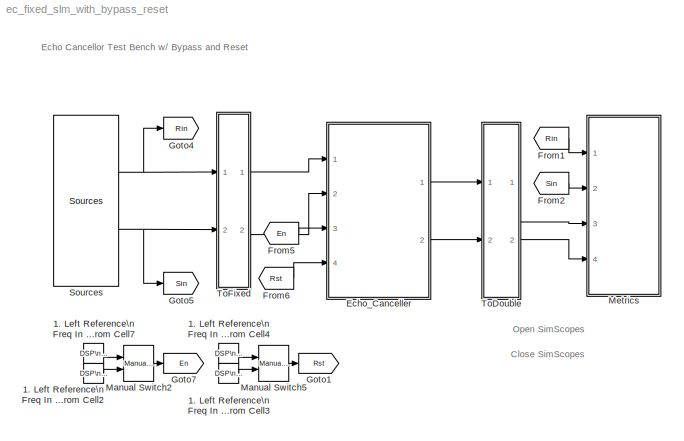
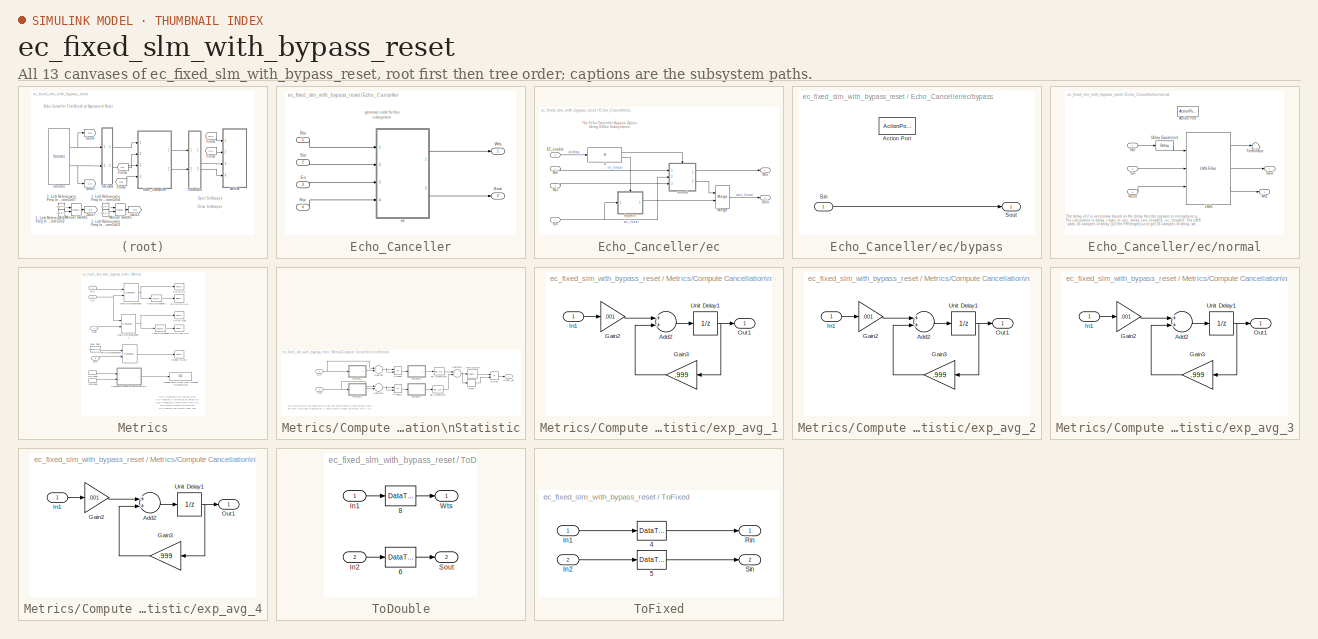
[diagram: thumbnail index - all 13 canvases of the model, root first then tree order]
MODEL ec_fixed_slm_with_bypass_reset
KIND model
CONFIG PreLoadFcn = ec_fixed_setup;
CONFIG StartFcn = tic;
CONFIG StopFcn = toc;
BLOCK [Reference] 1. Left Reference\nFreq In Hz\nFrom Cell2  REF=dspsrcs4/DSP\nConstant
  FramebasedOutput = -inf
  FunctionWithSeparateData = off
  InterpretAs1D = -inf
  Ports = [0, 1]
  RTWMemSecDataConstants = Inherit from model
  RTWMemSecDataInternal = Inherit from model
  RTWMemSecDataParameters = Inherit from model
  RTWMemSecFuncExecute = Inherit from model
  RTWMemSecFuncInitTerm = Inherit from model
  SID = 1
  SampleMode = Discrete
  ShowPortLabels = FromPortIcon
  SourceBlock = dspsrcs4/DSP\nConstant
  SourceProductBaseCode = DS
  SourceProductName = DSP System Toolbox
  SourceType = DSP Constant
  SystemSampleTime = -1
  Ts = -inf
  Value = 0
  additionalParams = on
  allowOverrides = on
  continuousOutput = Sample-based
  dataType = int16
  discreteOutput = Sample-based
  fracBitsMode = Best precision
  framePeriod = pic_frame_size/Fs
  isSigned = on
  numFracBits = 15
  sampTime = pic_frame_size/Fs
  udDataType = sfix(16)
  wordLen = 16
BLOCK [Reference] 1. Left Reference\nFreq In Hz\nFrom Cell3  REF=dspsrcs4/DSP\nConstant
  FramebasedOutput = -inf
  FunctionWithSeparateData = off
  InterpretAs1D = -inf
  Ports = [0, 1]
  RTWMemSecDataConstants = Inherit from model
  RTWMemSecDataInternal = Inherit from model
  RTWMemSecDataParameters = Inherit from model
  RTWMemSecFuncExecute = Inherit from model
  RTWMemSecFuncInitTerm = Inherit from model
  SID = 2
  SampleMode = Discrete
  ShowPortLabels = FromPortIcon
  SourceBlock = dspsrcs4/DSP\nConstant
  SourceProductBaseCode = DS
  SourceProductName = DSP System Toolbox
  SourceType = DSP Constant
  SystemSampleTime = -1
  Ts = -inf
  Value = 0
  additionalParams = on
  allowOverrides = on
  continuousOutput = Sample-based
  dataType = int16
  discreteOutput = Sample-based
  fracBitsMode = Best precision
  framePeriod = pic_frame_size/Fs
  isSigned = on
  numFracBits = 15
  sampTime = pic_frame_size/Fs
  udDataType = sfix(16)
  wordLen = 16
BLOCK [Reference] 1. Left Reference\nFreq In Hz\nFrom Cell4  REF=dspsrcs4/DSP\nConstant
  FramebasedOutput = -inf
  FunctionWithSeparateData = off
  InterpretAs1D = -inf
  Ports = [0, 1]
  RTWMemSecDataConstants = Inherit from model
  RTWMemSecDataInternal = Inherit from model
  RTWMemSecDataParameters = Inherit from model
  RTWMemSecFuncExecute = Inherit from model
  RTWMemSecFuncInitTerm = Inherit from model
  SID = 3
  SampleMode = Discrete
  ShowPortLabels = FromPortIcon
  SourceBlock = dspsrcs4/DSP\nConstant
  SourceProductBaseCode = DS
  SourceProductName = DSP System Toolbox
  SourceType = DSP Constant
  SystemSampleTime = -1
  Ts = -inf
  Value = 1
  additionalParams = on
  allowOverrides = on
  continuousOutput = Sample-based
  dataType = int16
  discreteOutput = Sample-based
  fracBitsMode = Best precision
  framePeriod = pic_frame_size/Fs
  isSigned = on
  numFracBits = 15
  sampTime = pic_frame_size/Fs
  udDataType = sfix(16)
  wordLen = 16
BLOCK [Reference] 1. Left Reference\nFreq In Hz\nFrom Cell7  REF=dspsrcs4/DSP\nConstant
  FramebasedOutput = -inf
  FunctionWithSeparateData = off
  InterpretAs1D = -inf
  Ports = [0, 1]
  RTWMemSecDataConstants = Inherit from model
  RTWMemSecDataInternal = Inherit from model
  RTWMemSecDataParameters = Inherit from model
  RTWMemSecFuncExecute = Inherit from model
  RTWMemSecFuncInitTerm = Inherit from model
  SID = 4
  SampleMode = Discrete
  ShowPortLabels = FromPortIcon
  SourceBlock = dspsrcs4/DSP\nConstant
  SourceProductBaseCode = DS
  SourceProductName = DSP System Toolbox
  SourceType = DSP Constant
  SystemSampleTime = -1
  Ts = -inf
  Value = 1
  additionalParams = on
  allowOverrides = on
  continuousOutput = Sample-based
  dataType = int16
  discreteOutput = Sample-based
  fracBitsMode = Best precision
  framePeriod = pic_frame_size/Fs
  isSigned = on
  numFracBits = 15
  sampTime = pic_frame_size/Fs
  udDataType = sfix(16)
  wordLen = 16
BLOCK [SubSystem] Echo_Canceller
  Ports = [4, 2]
  RequestExecContextInheritance = off
  SID = 5
BLOCK [Inport] Echo_Canceller/En
  IconDisplay = Port number
  OutDataTypeStr = int16
  Port = 3
  SID = 8
BLOCK [Inport] Echo_Canceller/Rin
  IconDisplay = Port number
  SID = 6
BLOCK [Inport] Echo_Canceller/Rst
  IconDisplay = Port number
  OutDataTypeStr = int16
  Port = 4
  SID = 9
BLOCK [Inport] Echo_Canceller/Sin 
  IconDisplay = Port number
  Port = 2
  SID = 7
BLOCK [Outport] Echo_Canceller/Sout
  IconDisplay = Port number
  Port = 2
  SID = 36
BLOCK [Outport] Echo_Canceller/Wts
  IconDisplay = Port number
  SID = 35
BLOCK [SubSystem] Echo_Canceller/ec
  Ports = [4, 2]
  RequestExecContextInheritance = off
  SID = 10
BLOCK [Inport] Echo_Canceller/ec/EC_enable
  IconDisplay = Port number
  Port = 3
  SID = 13
BLOCK [If] Echo_Canceller/ec/If
  IfExpression = u1 == 1
  Ports = [1, 2]
  SID = 15
BLOCK [Merge] Echo_Canceller/ec/Merge
  Ports = [2, 1]
  SID = 16
BLOCK [Inport] Echo_Canceller/ec/Rin
  IconDisplay = Port number
  SID = 11
BLOCK [Inport] Echo_Canceller/ec/Rst
  IconDisplay = Port number
  Port = 4
  SID = 14
BLOCK [Inport] Echo_Canceller/ec/Sin
  IconDisplay = Port number
  Port = 2
  SID = 12
BLOCK [Outport] Echo_Canceller/ec/Sout
  IconDisplay = Port number
  Port = 2
  SID = 33
BLOCK [Outport] Echo_Canceller/ec/Wts
  IconDisplay = Port number
  SID = 32
BLOCK [SubSystem] Echo_Canceller/ec/bypass
  Ports = [1, 1, 0, 0, 0, 0, 0, 1]
  RequestExecContextInheritance = off
  SID = 17
  TreatAsAtomicUnit = on
BLOCK [ActionPort] Echo_Canceller/ec/bypass/Action Port
  ActionPortLabel = else { }
  SID = 19
BLOCK [Inport] Echo_Canceller/ec/bypass/Sin 
  IconDisplay = Port number
  SID = 18
BLOCK [Outport] Echo_Canceller/ec/bypass/Sout
  IconDisplay = Port number
  SID = 20
BLOCK [SubSystem] Echo_Canceller/ec/normal
  Ports = [3, 2, 0, 0, 0, 0, 0, 1]
  RequestExecContextInheritance = off
  SID = 21
  TreatAsAtomicUnit = on
BLOCK [ActionPort] Echo_Canceller/ec/normal/Action Port
  ActionPortLabel = if { }
  SID = 25
BLOCK [Reference] Echo_Canceller/ec/normal/Delay Equalizer1  REF=dspsigops/Delay
  Ports = [1, 1]
  SID = 26
  SourceBlock = dspsigops/Delay
  SourceProductBaseCode = DS
  SourceProductName = DSP System Toolbox
  SourceType = Delay
  delay = spkr_to_mic_delay +sm_length/2 - ec_length/2
  dif_ic_for_ch = off
  dif_ic_for_dly = off
  dly_unit = Samples
  ic = 0
  ic_detail = off
  reset_popup = None
BLOCK [Reference] Echo_Canceller/ec/normal/LMS  REF=dspadpt3/LMS Filter
  Adapt = off
  Algo = LMS
  L = ec_length
  LockScale = off
  Ports = [3, 3]
  SID = 27
  ShowPortLabels = off
  SourceBlock = dspadpt3/LMS Filter
  SourceProductBaseCode = DS
  SourceProductName = DSP System Toolbox
  SourceType = LMS Filter
  accum2FracLength = LMS_Accum_FracLen
  accum2Mode = User-defined
  accumFracLength = 20
  accumMode = Binary point scaling
  accumWordLength = LMS_Accum_WordLen
  addnparflag = off
  firstCoeffFracLength = 15
  firstCoeffMode = Same word length as first input
  firstCoeffWordLength = 16
  ic = 0
  leakage = 1
  memoryFracLength = LMS_Wts_FracLen
  memoryMode = Binary point scaling
  memoryWordLength = LMS_Wts_WordLen
  mu = 300/32768
  overflowMode = off
  prodOutput2FracLength = LMS_Prod_FracLen
  prodOutput2Mode = User-defined
  prodOutput3FracLength = LMS_Prod_FracLen
  prodOutput3Mode = User-defined
  prodOutput4FracLength = LMS_Prod_FracLen
  prodOutput4Mode = User-defined
  prodOutputFracLength = 20
  prodOutputMode = Binary point scaling
  prodOutputWordLength = LMS_Prod_WordLen
  quotientFracLength = 20
  quotientMode = User-defined
  resetflag = Non-zero sample
  roundingMode = Nearest
  secondCoeffFracLength = 14
  secondCoeffMode = User-defined
  secondCoeffWordLength = 2
  stepflag = Dialog
  weights = on
BLOCK [Inport] Echo_Canceller/ec/normal/Reset
  IconDisplay = Port number
  Port = 3
  SID = 24
BLOCK [Inport] Echo_Canceller/ec/normal/Rin
  IconDisplay = Port number
  SID = 22
BLOCK [Inport] Echo_Canceller/ec/normal/Sin
  IconDisplay = Port number
  Port = 2
  SID = 23
BLOCK [Outport] Echo_Canceller/ec/normal/Sout
  IconDisplay = Port number
  Port = 2
  SID = 30
BLOCK [Terminator] Echo_Canceller/ec/normal/Terminator
  SID = 28
BLOCK [Outport] Echo_Canceller/ec/normal/Wts
  IconDisplay = Port number
  SID = 29
BLOCK [From] From1
  CloseFcn = tagdialog Close
  GotoTag = Rin
  SID = 38
  TagVisibility = global
BLOCK [From] From2
  CloseFcn = tagdialog Close
  GotoTag = Sin
  SID = 39
  TagVisibility = global
BLOCK [From] From5
  CloseFcn = tagdialog Close
  GotoTag = En
  SID = 40
BLOCK [From] From6
  CloseFcn = tagdialog Close
  GotoTag = Rst
  SID = 41
BLOCK [Goto] Goto1
  GotoTag = Rst
  SID = 42
BLOCK [Goto] Goto4
  GotoTag = Rin
  SID = 43
  TagVisibility = global
BLOCK [Goto] Goto5
  GotoTag = Sin
  SID = 44
  TagVisibility = global
BLOCK [Goto] Goto7
  GotoTag = En
  SID = 45
BLOCK [Reference] Manual Switch2  REF=simulink/Signal\nRouting/Manual Switch
  FunctionWithSeparateData = off
  Ports = [2, 1]
  RTWMemSecDataConstants = Inherit from model
  RTWMemSecDataInternal = Inherit from model
  RTWMemSecDataParameters = Inherit from model
  RTWMemSecFuncExecute = Inherit from model
  RTWMemSecFuncInitTerm = Inherit from model
  SID = 46
  ShowPortLabels = FromPortIcon
  SourceBlock = simulink/Signal\nRouting/Manual Switch
  SourceProductBaseCode = SL
  SourceProductName = Simulink
  SourceType = Manual Switch
  SystemSampleTime = -1
  action = 0
  sw = 1
  varsize = off
BLOCK [Reference] Manual Switch5  REF=simulink/Signal\nRouting/Manual Switch
  FunctionWithSeparateData = off
  Ports = [2, 1]
  RTWMemSecDataConstants = Inherit from model
  RTWMemSecDataInternal = Inherit from model
  RTWMemSecDataParameters = Inherit from model
  RTWMemSecFuncExecute = Inherit from model
  RTWMemSecFuncInitTerm = Inherit from model
  SID = 47
  ShowPortLabels = FromPortIcon
  SourceBlock = simulink/Signal\nRouting/Manual Switch
  SourceProductBaseCode = SL
  SourceProductName = Simulink
  SourceType = Manual Switch
  SystemSampleTime = -1
  action = 0
  sw = 0
  varsize = off
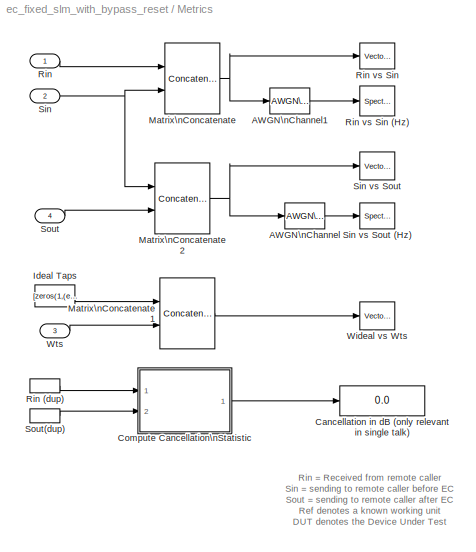
BLOCK [SubSystem] Metrics
  Ports = [4]
  RequestExecContextInheritance = off
  SID = 48
  TreatAsAtomicUnit = on
BLOCK [Reference] Metrics/AWGN\nChannel  REF=commchan3/AWGN\nChannel
  EbNodB = 100
  EsNodB = 10
  FunctionWithSeparateData = off
  Ports = [1, 1]
  Ps = 1
  RTWMemSecDataConstants = Inherit from model
  RTWMemSecDataInternal = Inherit from model
  RTWMemSecDataParameters = Inherit from model
  RTWMemSecFuncExecute = Inherit from model
  RTWMemSecFuncInitTerm = Inherit from model
  SID = 53
  SNRdB = 10
  ShowPortLabels = FromPortIcon
  SourceBlock = commchan3/AWGN\nChannel
  SourceProductBaseCode = CM
  SourceProductName = Communications Toolbox
  SourceType = AWGN Channel
  SystemSampleTime = -1
  Tsym = 1/Fs
  bitsPerSym = 1
  noiseMode = Signal to noise ratio  (Eb/No)
  seed = 67
  variance = 1
BLOCK [Reference] Metrics/AWGN\nChannel1  REF=commchan3/AWGN\nChannel
  EbNodB = 100
  EsNodB = 10
  FunctionWithSeparateData = off
  Ports = [1, 1]
  Ps = 1
  RTWMemSecDataConstants = Inherit from model
  RTWMemSecDataInternal = Inherit from model
  RTWMemSecDataParameters = Inherit from model
  RTWMemSecFuncExecute = Inherit from model
  RTWMemSecFuncInitTerm = Inherit from model
  SID = 54
  SNRdB = 10
  ShowPortLabels = FromPortIcon
  SourceBlock = commchan3/AWGN\nChannel
  SourceProductBaseCode = CM
  SourceProductName = Communications Toolbox
  SourceType = AWGN Channel
  SystemSampleTime = -1
  Tsym = 1/Fs
  bitsPerSym = 1
  noiseMode = Signal to noise ratio  (Eb/No)
  seed = 67
  variance = 1
BLOCK [Display] Metrics/Cancellation in dB (only relevant in single talk)
  Decimation = 1
  Ports = [1]
  SID = 55
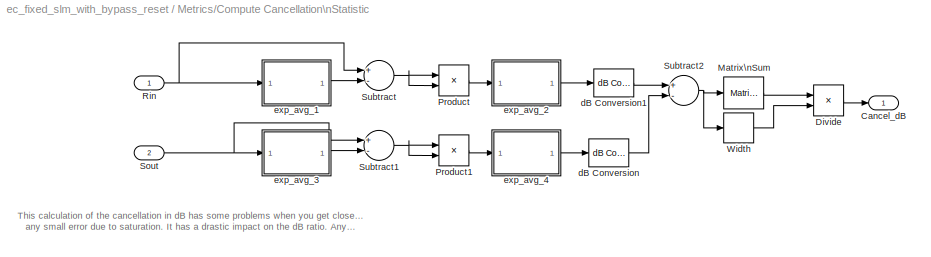
BLOCK [SubSystem] Metrics/Compute Cancellation\nStatistic
  Ports = [2, 1]
  RequestExecContextInheritance = off
  SID = 56
BLOCK [Outport] Metrics/Compute Cancellation\nStatistic/Cancel_dB
  IconDisplay = Port number
  SID = 97
BLOCK [Product] Metrics/Compute Cancellation\nStatistic/Divide
  InputSameDT = off
  Inputs = */
  OutDataTypeStr = Inherit: Inherit via internal rule
  Ports = [2, 1]
  RndMeth = Floor
  SID = 59
  SaturateOnIntegerOverflow = off
BLOCK [Reference] Metrics/Compute Cancellation\nStatistic/Matrix\nSum  REF=dspmtrx3/Matrix\nSum
  Dim = Columns
  LockScale = off
  Ports = [1, 1]
  SID = 60
  SourceBlock = dspmtrx3/Matrix\nSum
  SourceProductBaseCode = DS
  SourceProductName = DSP System Toolbox
  SourceType = Matrix Sum
  accumFracLength = 0
  accumMode = Binary point scaling
  accumWordLength = 32
  additionalParams = on
  allowOverrides = on
  outputFracLength = 0
  outputMode = Binary point scaling
  outputWordLength = 32
  overflowMode = off
  roundingMode = Floor
BLOCK [Product] Metrics/Compute Cancellation\nStatistic/Product
  InputSameDT = off
  OutDataTypeStr = Inherit: Inherit via internal rule
  Ports = [2, 1]
  SID = 61
  SaturateOnIntegerOverflow = off
BLOCK [Product] Metrics/Compute Cancellation\nStatistic/Product1
  InputSameDT = off
  OutDataTypeStr = Inherit: Inherit via internal rule
  Ports = [2, 1]
  SID = 62
  SaturateOnIntegerOverflow = off
BLOCK [Inport] Metrics/Compute Cancellation\nStatistic/Rin
  IconDisplay = Port number
  SID = 57
BLOCK [Inport] Metrics/Compute Cancellation\nStatistic/Sout
  IconDisplay = Port number
  Port = 2
  SID = 58
BLOCK [Sum] Metrics/Compute Cancellation\nStatistic/Subtract
  InputSameDT = off
  Inputs = +-
  OutDataTypeStr = Inherit: Inherit via internal rule
  Ports = [2, 1]
  SID = 63
  SaturateOnIntegerOverflow = off
BLOCK [Sum] Metrics/Compute Cancellation\nStatistic/Subtract1
  InputSameDT = off
  Inputs = +-
  OutDataTypeStr = Inherit: Inherit via internal rule
  Ports = [2, 1]
  SID = 64
  SaturateOnIntegerOverflow = off
BLOCK [Sum] Metrics/Compute Cancellation\nStatistic/Subtract2
  InputSameDT = off
  Inputs = +-
  OutDataTypeStr = Inherit: Inherit via internal rule
  Ports = [2, 1]
  SID = 65
  SaturateOnIntegerOverflow = off
BLOCK [Width] Metrics/Compute Cancellation\nStatistic/Width
  SID = 66
BLOCK [Reference] Metrics/Compute Cancellation\nStatistic/dB Conversion  REF=dspmathops/dB Conversion
  FunctionWithSeparateData = off
  Ports = [1, 1]
  R = 1
  RTWMemSecDataConstants = Inherit from model
  RTWMemSecDataInternal = Inherit from model
  RTWMemSecDataParameters = Inherit from model
  RTWMemSecFuncExecute = Inherit from model
  RTWMemSecFuncInitTerm = Inherit from model
  SID = 67
  ShowPortLabels = FromPortIcon
  SourceBlock = dspmathops/dB Conversion
  SourceProductBaseCode = DS
  SourceProductName = DSP System Toolbox
  SourceType = dB Conversion
  SystemSampleTime = -1
  dBtype = dB
  fuzz = on
  intype = Power
BLOCK [Reference] Metrics/Compute Cancellation\nStatistic/dB Conversion1  REF=dspmathops/dB Conversion
  FunctionWithSeparateData = off
  Ports = [1, 1]
  R = 1
  RTWMemSecDataConstants = Inherit from model
  RTWMemSecDataInternal = Inherit from model
  RTWMemSecDataParameters = Inherit from model
  RTWMemSecFuncExecute = Inherit from model
  RTWMemSecFuncInitTerm = Inherit from model
  SID = 68
  ShowPortLabels = FromPortIcon
  SourceBlock = dspmathops/dB Conversion
  SourceProductBaseCode = DS
  SourceProductName = DSP System Toolbox
  SourceType = dB Conversion
  SystemSampleTime = -1
  dBtype = dB
  fuzz = on
  intype = Power
BLOCK [SubSystem] Metrics/Compute Cancellation\nStatistic/exp_avg_1
  Ports = [1, 1]
  RequestExecContextInheritance = off
  SID = 69
BLOCK [Sum] Metrics/Compute Cancellation\nStatistic/exp_avg_1/Add2
  InputSameDT = off
  OutDataTypeStr = Inherit: Inherit via internal rule
  Ports = [2, 1]
  SID = 71
  SaturateOnIntegerOverflow = off
BLOCK [Gain] Metrics/Compute Cancellation\nStatistic/exp_avg_1/Gain2
  Gain = .001
  OutDataTypeStr = Inherit: Inherit via internal rule
  ParamDataTypeStr = Inherit: Inherit via internal rule
  SID = 72
  SaturateOnIntegerOverflow = off
BLOCK [Gain] Metrics/Compute Cancellation\nStatistic/exp_avg_1/Gain3
  Gain = .999
  OutDataTypeStr = Inherit: Inherit via internal rule
  ParamDataTypeStr = Inherit: Inherit via internal rule
  SID = 73
  SaturateOnIntegerOverflow = off
BLOCK [Inport] Metrics/Compute Cancellation\nStatistic/exp_avg_1/In1
  IconDisplay = Port number
  SID = 70
BLOCK [Outport] Metrics/Compute Cancellation\nStatistic/exp_avg_1/Out1
  IconDisplay = Port number
  SID = 75
BLOCK [UnitDelay] Metrics/Compute Cancellation\nStatistic/exp_avg_1/Unit Delay1
  SID = 74
  SampleTime = -1
BLOCK [SubSystem] Metrics/Compute Cancellation\nStatistic/exp_avg_2
  Ports = [1, 1]
  RequestExecContextInheritance = off
  SID = 76
BLOCK [Sum] Metrics/Compute Cancellation\nStatistic/exp_avg_2/Add2
  InputSameDT = off
  OutDataTypeStr = Inherit: Inherit via internal rule
  Ports = [2, 1]
  SID = 78
  SaturateOnIntegerOverflow = off
BLOCK [Gain] Metrics/Compute Cancellation\nStatistic/exp_avg_2/Gain2
  Gain = .001
  OutDataTypeStr = Inherit: Inherit via internal rule
  ParamDataTypeStr = Inherit: Inherit via internal rule
  SID = 79
  SaturateOnIntegerOverflow = off
BLOCK [Gain] Metrics/Compute Cancellation\nStatistic/exp_avg_2/Gain3
  Gain = .999
  OutDataTypeStr = Inherit: Inherit via internal rule
  ParamDataTypeStr = Inherit: Inherit via internal rule
  SID = 80
  SaturateOnIntegerOverflow = off
BLOCK [Inport] Metrics/Compute Cancellation\nStatistic/exp_avg_2/In1
  IconDisplay = Port number
  SID = 77
BLOCK [Outport] Metrics/Compute Cancellation\nStatistic/exp_avg_2/Out1
  IconDisplay = Port number
  SID = 82
BLOCK [UnitDelay] Metrics/Compute Cancellation\nStatistic/exp_avg_2/Unit Delay1
  SID = 81
  SampleTime = -1
BLOCK [SubSystem] Metrics/Compute Cancellation\nStatistic/exp_avg_3
  Ports = [1, 1]
  RequestExecContextInheritance = off
  SID = 83
BLOCK [Sum] Metrics/Compute Cancellation\nStatistic/exp_avg_3/Add2
  InputSameDT = off
  OutDataTypeStr = Inherit: Inherit via internal rule
  Ports = [2, 1]
  SID = 85
  SaturateOnIntegerOverflow = off
BLOCK [Gain] Metrics/Compute Cancellation\nStatistic/exp_avg_3/Gain2
  Gain = .001
  OutDataTypeStr = Inherit: Inherit via internal rule
  ParamDataTypeStr = Inherit: Inherit via internal rule
  SID = 86
  SaturateOnIntegerOverflow = off
BLOCK [Gain] Metrics/Compute Cancellation\nStatistic/exp_avg_3/Gain3
  Gain = .999
  OutDataTypeStr = Inherit: Inherit via internal rule
  ParamDataTypeStr = Inherit: Inherit via internal rule
  SID = 87
  SaturateOnIntegerOverflow = off
BLOCK [Inport] Metrics/Compute Cancellation\nStatistic/exp_avg_3/In1
  IconDisplay = Port number
  SID = 84
BLOCK [Outport] Metrics/Compute Cancellation\nStatistic/exp_avg_3/Out1
  IconDisplay = Port number
  SID = 89
BLOCK [UnitDelay] Metrics/Compute Cancellation\nStatistic/exp_avg_3/Unit Delay1
  SID = 88
  SampleTime = -1
BLOCK [SubSystem] Metrics/Compute Cancellation\nStatistic/exp_avg_4
  Ports = [1, 1]
  RequestExecContextInheritance = off
  SID = 90
BLOCK [Sum] Metrics/Compute Cancellation\nStatistic/exp_avg_4/Add2
  InputSameDT = off
  OutDataTypeStr = Inherit: Inherit via internal rule
  Ports = [2, 1]
  SID = 92
  SaturateOnIntegerOverflow = off
BLOCK [Gain] Metrics/Compute Cancellation\nStatistic/exp_avg_4/Gain2
  Gain = .001
  OutDataTypeStr = Inherit: Inherit via internal rule
  ParamDataTypeStr = Inherit: Inherit via internal rule
  SID = 93
  SaturateOnIntegerOverflow = off
BLOCK [Gain] Metrics/Compute Cancellation\nStatistic/exp_avg_4/Gain3
  Gain = .999
  OutDataTypeStr = Inherit: Inherit via internal rule
  ParamDataTypeStr = Inherit: Inherit via internal rule
  SID = 94
  SaturateOnIntegerOverflow = off
BLOCK [Inport] Metrics/Compute Cancellation\nStatistic/exp_avg_4/In1
  IconDisplay = Port number
  SID = 91
BLOCK [Outport] Metrics/Compute Cancellation\nStatistic/exp_avg_4/Out1
  IconDisplay = Port number
  SID = 96
BLOCK [UnitDelay] Metrics/Compute Cancellation\nStatistic/exp_avg_4/Unit Delay1
  SID = 95
  SampleTime = -1
BLOCK [Constant] Metrics/Ideal Taps
  FramePeriod = pic_frame_size/Fs
  SID = 99
  SampleTime = pic_frame_size/Fs
  SamplingMode = Frame based
  Value = [zeros(1,(ec_length-sm_length)/2) spkr_to_mic_filter zeros(1,(ec_length-sm_length)/2)]
BLOCK [Concatenate] Metrics/Matrix\nConcatenate
  ConcatenateDimension = 2
  Mode = Multidimensional array
  Ports = [2, 1]
  SID = 100
BLOCK [Concatenate] Metrics/Matrix\nConcatenate1
  ConcatenateDimension = 2
  Mode = Multidimensional array
  Ports = [2, 1]
  SID = 101
BLOCK [Concatenate] Metrics/Matrix\nConcatenate2
  ConcatenateDimension = 2
  Mode = Multidimensional array
  Ports = [2, 1]
  SID = 102
BLOCK [Inport] Metrics/Rin
  IconDisplay = Port number
  SID = 49
BLOCK [InportShadow] Metrics/Rin (dup)
  IconDisplay = Port number
  SID = 103
BLOCK [Reference] Metrics/Rin vs Sin  REF=dspsnks4/Vector\nScope
  AxisGrid = on
  AxisLegend = off
  AxisProperties = off
  AxisZoom = off
  DisplayProperties = off
  Domain = Time
  FigPos = [21 752 277 182]
  FrameNumber = on
  HorizSpan = 1
  InheritXIncr = on
  LineColors = [1 0 0]|[0 1 0]
  LineProperties = off
  Memory = off
  OpenScopeAtSimStart = off
  OpenScopeImmediately = off
  Ports = [1]
  SID = 104
  ScopeProperties = on
  ShowPortLabels = off
  SourceBlock = dspsnks4/Vector\nScope
  SourceProductBaseCode = DS
  SourceProductName = DSP System Toolbox
  SourceType = Vector Scope
  XIncr = 1
  XLabel = Time
  XLimit = Auto
  XMax = 1
  XMin = 0
  XRange = [0...Fs/2]
  XStart = 0
  XUnits = Hertz
  YLabel = Amplitude
  YMax = 1
  YMin = -1
  YUnits = dB
BLOCK [Reference] Metrics/Rin vs Sin (Hz)  REF=dspsnks4/Spectrum\nScope
  AxisGrid = on
  AxisLegend = off
  AxisProperties = off
  AxisZoom = off
  BufferSize = 512
  DisplayProperties = off
  Domain = Frequency
  FFTlength = 128
  FigPos = [22 519 280 178]
  FrameNumber = on
  FunctionWithSeparateData = off
  HorizSpan = 1
  InheritXIncr = on
  LineColors = [1 0 0]|[0 1 0]
  LineProperties = off
  Memory = off
  OpenScopeAtSimStart = off
  OpenScopeImmediately = off
  Overlap = 64
  Ports = [1]
  RTWMemSecDataConstants = Inherit from model
  RTWMemSecDataInternal = Inherit from model
  RTWMemSecDataParameters = Inherit from model
  RTWMemSecFuncExecute = Inherit from model
  RTWMemSecFuncInitTerm = Inherit from model
  RsSpecScope = 50
  SID = 105
  ScopeProperties = on
  ShowPortLabels = none
  SourceBlock = dspsnks4/Spectrum\nScope
  SourceProductBaseCode = DS
  SourceProductName = DSP System Toolbox
  SourceType = Spectrum Scope
  SystemSampleTime = -1
  UseBuffer = on
  XIncr = 1.0
  XLabel = Samples
  XLimit = Auto
  XMax = 1
  XMin = 0
  XRange = [0...Fs/2]
  XUnits = Hertz
  YLabel = Magnitude-squared, dB
  YMax = 22.6100164436924
  YMin = -87.2863320440191
  YUnits = dB
  betaSpecScope = 5
  inpFftLenInherit = off
  numAvg = 2
  winsampSpecScope = Periodic
  wintypeSpecScope = Hann
BLOCK [Inport] Metrics/Sin
  IconDisplay = Port number
  Port = 2
  SID = 50
BLOCK [Reference] Metrics/Sin vs Sout  REF=dspsnks4/Vector\nScope
  AxisGrid = on
  AxisLegend = off
  AxisProperties = off
  AxisZoom = off
  DisplayProperties = off
  Domain = Time
  FigPos = [309 518 291 181]
  FrameNumber = on
  HorizSpan = 1
  InheritXIncr = on
  LineColors = [1 0 0]|[0 1 0]
  LineProperties = off
  Memory = off
  OpenScopeAtSimStart = off
  OpenScopeImmediately = off
  Ports = [1]
  SID = 106
  ScopeProperties = on
  ShowPortLabels = off
  SourceBlock = dspsnks4/Vector\nScope
  SourceProductBaseCode = DS
  SourceProductName = DSP System Toolbox
  SourceType = Vector Scope
  XIncr = 1
  XLabel = Time
  XLimit = Auto
  XMax = 1
  XMin = 0
  XRange = [0...Fs/2]
  XStart = 0
  XUnits = Hertz
  YLabel = Amplitude
  YMax = 1.10983865900285
  YMin = -1.10854137455551
  YUnits = dB
BLOCK [Reference] Metrics/Sin vs Sout (Hz)  REF=dspsnks4/Spectrum\nScope
  AxisGrid = on
  AxisLegend = off
  AxisProperties = off
  AxisZoom = off
  BufferSize = 512
  DisplayProperties = off
  Domain = Frequency
  FFTlength = 128
  FigPos = [313 280 293 181]
  FrameNumber = on
  FunctionWithSeparateData = off
  HorizSpan = 1
  InheritXIncr = on
  LineColors = [1 0 0]|[0 1 0]
  LineProperties = off
  Memory = off
  OpenScopeAtSimStart = off
  OpenScopeImmediately = off
  Overlap = 64
  Ports = [1]
  RTWMemSecDataConstants = Inherit from model
  RTWMemSecDataInternal = Inherit from model
  RTWMemSecDataParameters = Inherit from model
  RTWMemSecFuncExecute = Inherit from model
  RTWMemSecFuncInitTerm = Inherit from model
  RsSpecScope = 50
  SID = 107
  ScopeProperties = on
  ShowPortLabels = none
  SourceBlock = dspsnks4/Spectrum\nScope
  SourceProductBaseCode = DS
  SourceProductName = DSP System Toolbox
  SourceType = Spectrum Scope
  SystemSampleTime = -1
  UseBuffer = on
  XIncr = 1.0
  XLabel = Samples
  XLimit = Auto
  XMax = 1
  XMin = 0
  XRange = [0...Fs/2]
  XUnits = Hertz
  YLabel = Magnitude-squared, dB
  YMax = 21.0948472865104
  YMin = -128.562839071617
  YUnits = dB
  betaSpecScope = 5
  inpFftLenInherit = off
  numAvg = 2
  winsampSpecScope = Periodic
  wintypeSpecScope = Hann
BLOCK [Inport] Metrics/Sout
  IconDisplay = Port number
  Port = 4
  SID = 52
BLOCK [InportShadow] Metrics/Sout(dup)
  IconDisplay = Port number
  Port = 4
  SID = 108
BLOCK [Reference] Metrics/Wideal vs Wts  REF=dspsnks4/Vector\nScope
  AxisGrid = on
  AxisLegend = off
  AxisProperties = off
  AxisZoom = off
  DisplayProperties = off
  Domain = Time
  FigPos = [16 440 466 179]
  FrameNumber = on
  HorizSpan = 1
  InheritXIncr = on
  LineColors = [1 0 0]|[0 1 0]
  LineProperties = off
  Memory = off
  OpenScopeAtSimStart = on
  OpenScopeImmediately = off
  Ports = [1]
  SID = 109
  ScopeProperties = on
  ShowPortLabels = off
  SourceBlock = dspsnks4/Vector\nScope
  SourceProductBaseCode = DS
  SourceProductName = DSP System Toolbox
  SourceType = Vector Scope
  XIncr = 1
  XLabel = Time
  XLimit = Auto
  XMax = 1
  XMin = 0
  XRange = [0...Fs/2]
  XStart = 0
  XUnits = Hertz
  YLabel = Amplitude
  YMax = 0.388477789695183
  YMin = -0.387806694375187
  YUnits = dB
BLOCK [Inport] Metrics/Wts
  IconDisplay = Port number
  Port = 3
  SID = 51
BLOCK [Reference] Sources  REF=ec_lib/Sources
  FunctionWithSeparateData = off
  Ports = [0, 2]
  RTWMemSecDataConstants = Inherit from model
  RTWMemSecDataInternal = Inherit from model
  RTWMemSecDataParameters = Inherit from model
  RTWMemSecFuncExecute = Inherit from model
  RTWMemSecFuncInitTerm = Inherit from model
  SID = 111
  ShowPortLabels = FromPortIcon
  SourceBlock = ec_lib/Sources
  SourceType = SubSystem
  SystemSampleTime = -1
BLOCK [SubSystem] ToDouble
  Ports = [2, 2]
  RequestExecContextInheritance = off
  SID = 112
BLOCK [DataTypeConversion] ToDouble/ 6
  OutDataTypeStr = double
  RndMeth = Floor
  SID = 115
  SaturateOnIntegerOverflow = off
BLOCK [DataTypeConversion] ToDouble/ 8
  OutDataTypeStr = double
  RndMeth = Floor
  SID = 116
  SaturateOnIntegerOverflow = off
BLOCK [Inport] ToDouble/In1
  IconDisplay = Port number
  SID = 113
BLOCK [Inport] ToDouble/In2
  IconDisplay = Port number
  Port = 2
  SID = 114
BLOCK [Outport] ToDouble/Sout
  IconDisplay = Port number
  Port = 2
  SID = 118
BLOCK [Outport] ToDouble/Wts
  IconDisplay = Port number
  SID = 117
BLOCK [SubSystem] ToFixed
  Ports = [2, 2]
  RequestExecContextInheritance = off
  SID = 119
BLOCK [DataTypeConversion] ToFixed/ 4
  RndMeth = Floor
  SID = 122
  SaturateOnIntegerOverflow = off
BLOCK [DataTypeConversion] ToFixed/ 5
  RndMeth = Floor
  SID = 123
  SaturateOnIntegerOverflow = off
BLOCK [Inport] ToFixed/ In2
  IconDisplay = Port number
  Port = 2
  SID = 121
BLOCK [Inport] ToFixed/In1
  IconDisplay = Port number
  SID = 120
BLOCK [Outport] ToFixed/Rin
  IconDisplay = Port number
  SID = 124
BLOCK [Outport] ToFixed/Sin
  IconDisplay = Port number
  Port = 2
  SID = 125
ANNOTATION (root): Close SimScopes
ANNOTATION (root): Echo Cancellor Test Bench w/ Bypass and Reset
ANNOTATION (root): Open SimScopes
ANNOTATION Echo_Canceller: generate code for this\nsubsystem
ANNOTATION Echo_Canceller/ec: The Echo Canceller Bypass Option\nUsing If-Else Subsystems
ANNOTATION Echo_Canceller/ec/normal: The delay of 2 is necessary based on the delay thru the speaker to microphone pathway.\nThe calculation is delay = spkr_to_mic_delay +sm_length/2 - ec_length/2. The LMS\nadds 16 samples of delay (1/2 the FIR length) so to get 18 samples of delay, we add 2 more.
ANNOTATION Metrics: Rin = Received from remote caller\nSin = sending to remote caller before EC\nSout = sending to remote caller after EC\nRef denotes a known working unit\nDUT denotes the Device Under Test
ANNOTATION Metrics/Compute Cancellation\nStatistic: This calculation of the cancellation in dB has some problems when you get close to complete cancellation and then there is\nany small error due to saturation. It has a drastic impact on the dB ratio. Anytime you get close to zero you run into these problems.
LINE 1. Left Reference\nFreq In Hz\nFrom Cell2:1 -> Manual Switch2:2
LINE 1. Left Reference\nFreq In Hz\nFrom Cell3:1 -> Manual Switch5:2
LINE 1. Left Reference\nFreq In Hz\nFrom Cell4:1 -> Manual Switch5:1
LINE 1. Left Reference\nFreq In Hz\nFrom Cell7:1 -> Manual Switch2:1
LINE Echo_Canceller/En:1 -> Echo_Canceller/ec:3
LINE Echo_Canceller/Rin:1 -> Echo_Canceller/ec:1
LINE Echo_Canceller/Rst:1 -> Echo_Canceller/ec:4
LINE Echo_Canceller/Sin :1 -> Echo_Canceller/ec:2
LINE Echo_Canceller/ec/EC_enable:1 -> Echo_Canceller/ec/If:1
LINE Echo_Canceller/ec/If:1 -> Echo_Canceller/ec/normal:ifaction
LINE Echo_Canceller/ec/If:2 -> Echo_Canceller/ec/bypass:ifaction
LINE Echo_Canceller/ec/Merge:1 -> Echo_Canceller/ec/Sout:1
LINE Echo_Canceller/ec/Rin:1 -> Echo_Canceller/ec/normal:1
LINE Echo_Canceller/ec/Rst:1 -> Echo_Canceller/ec/normal:3
NET Echo_Canceller/ec/Sin:1 -> Echo_Canceller/ec/bypass:1, Echo_Canceller/ec/normal:2
LINE Echo_Canceller/ec/bypass/Sin :1 -> Echo_Canceller/ec/bypass/Sout:1
LINE Echo_Canceller/ec/bypass:1 -> Echo_Canceller/ec/Merge:2
LINE Echo_Canceller/ec/normal/Delay Equalizer1:1 -> Echo_Canceller/ec/normal/LMS:1
LINE Echo_Canceller/ec/normal/LMS:1 -> Echo_Canceller/ec/normal/Terminator:1
LINE Echo_Canceller/ec/normal/LMS:2 -> Echo_Canceller/ec/normal/Sout:1
LINE Echo_Canceller/ec/normal/LMS:3 -> Echo_Canceller/ec/normal/Wts:1
LINE Echo_Canceller/ec/normal/Reset:1 -> Echo_Canceller/ec/normal/LMS:3
LINE Echo_Canceller/ec/normal/Rin:1 -> Echo_Canceller/ec/normal/Delay Equalizer1:1
LINE Echo_Canceller/ec/normal/Sin:1 -> Echo_Canceller/ec/normal/LMS:2
LINE Echo_Canceller/ec/normal:1 -> Echo_Canceller/ec/Wts:1
LINE Echo_Canceller/ec/normal:2 -> Echo_Canceller/ec/Merge:1
LINE Echo_Canceller/ec:1 -> Echo_Canceller/Wts:1
LINE Echo_Canceller/ec:2 -> Echo_Canceller/Sout:1
LINE Echo_Canceller:1 -> ToDouble:1
LINE Echo_Canceller:2 -> ToDouble:2
LINE From1:1 -> Metrics:1
LINE From2:1 -> Metrics:2
LINE From5:1 -> Echo_Canceller:3
LINE From6:1 -> Echo_Canceller:4
LINE Manual Switch2:1 -> Goto7:1
LINE Manual Switch5:1 -> Goto1:1
LINE Metrics/AWGN\nChannel1:1 -> Metrics/Rin vs Sin (Hz):1
LINE Metrics/AWGN\nChannel:1 -> Metrics/Sin vs Sout (Hz):1
LINE Metrics/Compute Cancellation\nStatistic/Divide:1 -> Metrics/Compute Cancellation\nStatistic/Cancel_dB:1
LINE Metrics/Compute Cancellation\nStatistic/Matrix\nSum:1 -> Metrics/Compute Cancellation\nStatistic/Divide:1
LINE Metrics/Compute Cancellation\nStatistic/Product1:1 -> Metrics/Compute Cancellation\nStatistic/exp_avg_4:1
LINE Metrics/Compute Cancellation\nStatistic/Product:1 -> Metrics/Compute Cancellation\nStatistic/exp_avg_2:1
NET Metrics/Compute Cancellation\nStatistic/Rin:1 -> Metrics/Compute Cancellation\nStatistic/Subtract:1, Metrics/Compute Cancellation\nStatistic/exp_avg_1:1
NET Metrics/Compute Cancellation\nStatistic/Sout:1 -> Metrics/Compute Cancellation\nStatistic/Subtract1:1, Metrics/Compute Cancellation\nStatistic/exp_avg_3:1
NET Metrics/Compute Cancellation\nStatistic/Subtract1:1 -> Metrics/Compute Cancellation\nStatistic/Product1:1, Metrics/Compute Cancellation\nStatistic/Product1:2
NET Metrics/Compute Cancellation\nStatistic/Subtract2:1 -> Metrics/Compute Cancellation\nStatistic/Matrix\nSum:1, Metrics/Compute Cancellation\nStatistic/Width:1
NET Metrics/Compute Cancellation\nStatistic/Subtract:1 -> Metrics/Compute Cancellation\nStatistic/Product:1, Metrics/Compute Cancellation\nStatistic/Product:2
LINE Metrics/Compute Cancellation\nStatistic/Width:1 -> Metrics/Compute Cancellation\nStatistic/Divide:2
LINE Metrics/Compute Cancellation\nStatistic/dB Conversion1:1 -> Metrics/Compute Cancellation\nStatistic/Subtract2:1
LINE Metrics/Compute Cancellation\nStatistic/dB Conversion:1 -> Metrics/Compute Cancellation\nStatistic/Subtract2:2
LINE Metrics/Compute Cancellation\nStatistic/exp_avg_1/Add2:1 -> Metrics/Compute Cancellation\nStatistic/exp_avg_1/Unit Delay1:1
LINE Metrics/Compute Cancellation\nStatistic/exp_avg_1/Gain2:1 -> Metrics/Compute Cancellation\nStatistic/exp_avg_1/Add2:1
LINE Metrics/Compute Cancellation\nStatistic/exp_avg_1/Gain3:1 -> Metrics/Compute Cancellation\nStatistic/exp_avg_1/Add2:2
LINE Metrics/Compute Cancellation\nStatistic/exp_avg_1/In1:1 -> Metrics/Compute Cancellation\nStatistic/exp_avg_1/Gain2:1
NET Metrics/Compute Cancellation\nStatistic/exp_avg_1/Unit Delay1:1 -> Metrics/Compute Cancellation\nStatistic/exp_avg_1/Gain3:1, Metrics/Compute Cancellation\nStatistic/exp_avg_1/Out1:1
LINE Metrics/Compute Cancellation\nStatistic/exp_avg_1:1 -> Metrics/Compute Cancellation\nStatistic/Subtract:2
LINE Metrics/Compute Cancellation\nStatistic/exp_avg_2/Add2:1 -> Metrics/Compute Cancellation\nStatistic/exp_avg_2/Unit Delay1:1
LINE Metrics/Compute Cancellation\nStatistic/exp_avg_2/Gain2:1 -> Metrics/Compute Cancellation\nStatistic/exp_avg_2/Add2:1
LINE Metrics/Compute Cancellation\nStatistic/exp_avg_2/Gain3:1 -> Metrics/Compute Cancellation\nStatistic/exp_avg_2/Add2:2
LINE Metrics/Compute Cancellation\nStatistic/exp_avg_2/In1:1 -> Metrics/Compute Cancellation\nStatistic/exp_avg_2/Gain2:1
NET Metrics/Compute Cancellation\nStatistic/exp_avg_2/Unit Delay1:1 -> Metrics/Compute Cancellation\nStatistic/exp_avg_2/Gain3:1, Metrics/Compute Cancellation\nStatistic/exp_avg_2/Out1:1
LINE Metrics/Compute Cancellation\nStatistic/exp_avg_2:1 -> Metrics/Compute Cancellation\nStatistic/dB Conversion1:1
LINE Metrics/Compute Cancellation\nStatistic/exp_avg_3/Add2:1 -> Metrics/Compute Cancellation\nStatistic/exp_avg_3/Unit Delay1:1
LINE Metrics/Compute Cancellation\nStatistic/exp_avg_3/Gain2:1 -> Metrics/Compute Cancellation\nStatistic/exp_avg_3/Add2:1
LINE Metrics/Compute Cancellation\nStatistic/exp_avg_3/Gain3:1 -> Metrics/Compute Cancellation\nStatistic/exp_avg_3/Add2:2
LINE Metrics/Compute Cancellation\nStatistic/exp_avg_3/In1:1 -> Metrics/Compute Cancellation\nStatistic/exp_avg_3/Gain2:1
NET Metrics/Compute Cancellation\nStatistic/exp_avg_3/Unit Delay1:1 -> Metrics/Compute Cancellation\nStatistic/exp_avg_3/Gain3:1, Metrics/Compute Cancellation\nStatistic/exp_avg_3/Out1:1
LINE Metrics/Compute Cancellation\nStatistic/exp_avg_3:1 -> Metrics/Compute Cancellation\nStatistic/Subtract1:2
LINE Metrics/Compute Cancellation\nStatistic/exp_avg_4/Add2:1 -> Metrics/Compute Cancellation\nStatistic/exp_avg_4/Unit Delay1:1
LINE Metrics/Compute Cancellation\nStatistic/exp_avg_4/Gain2:1 -> Metrics/Compute Cancellation\nStatistic/exp_avg_4/Add2:1
LINE Metrics/Compute Cancellation\nStatistic/exp_avg_4/Gain3:1 -> Metrics/Compute Cancellation\nStatistic/exp_avg_4/Add2:2
LINE Metrics/Compute Cancellation\nStatistic/exp_avg_4/In1:1 -> Metrics/Compute Cancellation\nStatistic/exp_avg_4/Gain2:1
NET Metrics/Compute Cancellation\nStatistic/exp_avg_4/Unit Delay1:1 -> Metrics/Compute Cancellation\nStatistic/exp_avg_4/Gain3:1, Metrics/Compute Cancellation\nStatistic/exp_avg_4/Out1:1
LINE Metrics/Compute Cancellation\nStatistic/exp_avg_4:1 -> Metrics/Compute Cancellation\nStatistic/dB Conversion:1
LINE Metrics/Compute Cancellation\nStatistic:1 -> Metrics/Cancellation in dB (only relevant in single talk):1
LINE Metrics/Ideal Taps:1 -> Metrics/Matrix\nConcatenate1:1
LINE Metrics/Matrix\nConcatenate1:1 -> Metrics/Wideal vs Wts:1
NET Metrics/Matrix\nConcatenate2:1 -> Metrics/AWGN\nChannel:1, Metrics/Sin vs Sout:1
NET Metrics/Matrix\nConcatenate:1 -> Metrics/AWGN\nChannel1:1, Metrics/Rin vs Sin:1
LINE Metrics/Rin (dup):1 -> Metrics/Compute Cancellation\nStatistic:1
LINE Metrics/Rin:1 -> Metrics/Matrix\nConcatenate:1
NET Metrics/Sin:1 -> Metrics/Matrix\nConcatenate2:1, Metrics/Matrix\nConcatenate:2
LINE Metrics/Sout(dup):1 -> Metrics/Compute Cancellation\nStatistic:2
LINE Metrics/Sout:1 -> Metrics/Matrix\nConcatenate2:2
LINE Metrics/Wts:1 -> Metrics/Matrix\nConcatenate1:2
NET Sources:1 -> Goto4:1, ToFixed:1
NET Sources:2 -> Goto5:1, ToFixed:2
LINE ToDouble/ 6:1 -> ToDouble/Sout:1
LINE ToDouble/ 8:1 -> ToDouble/Wts:1
LINE ToDouble/In1:1 -> ToDouble/ 8:1
LINE ToDouble/In2:1 -> ToDouble/ 6:1
LINE ToDouble:1 -> Metrics:3
LINE ToDouble:2 -> Metrics:4
LINE ToFixed/ 4:1 -> ToFixed/Rin:1
LINE ToFixed/ 5:1 -> ToFixed/Sin:1
LINE ToFixed/ In2:1 -> ToFixed/ 5:1
LINE ToFixed/In1:1 -> ToFixed/ 4:1
LINE ToFixed:1 -> Echo_Canceller:1
LINE ToFixed:2 -> Echo_Canceller:2
note: NET lines group one-source signal fan-out (src -> all destinations, sorted); 1:1 wires keep LINE
